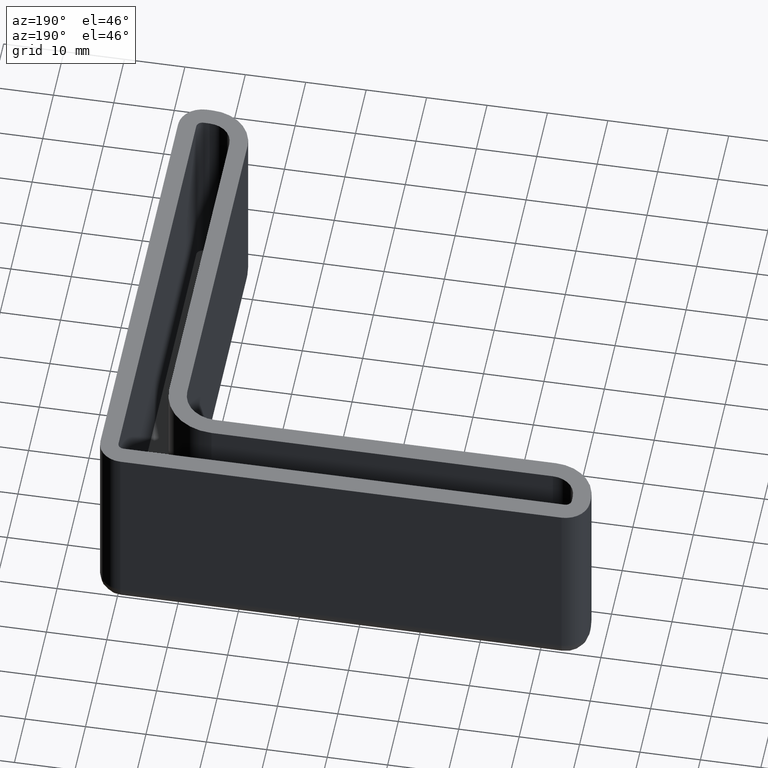
[diagram: clean part render]
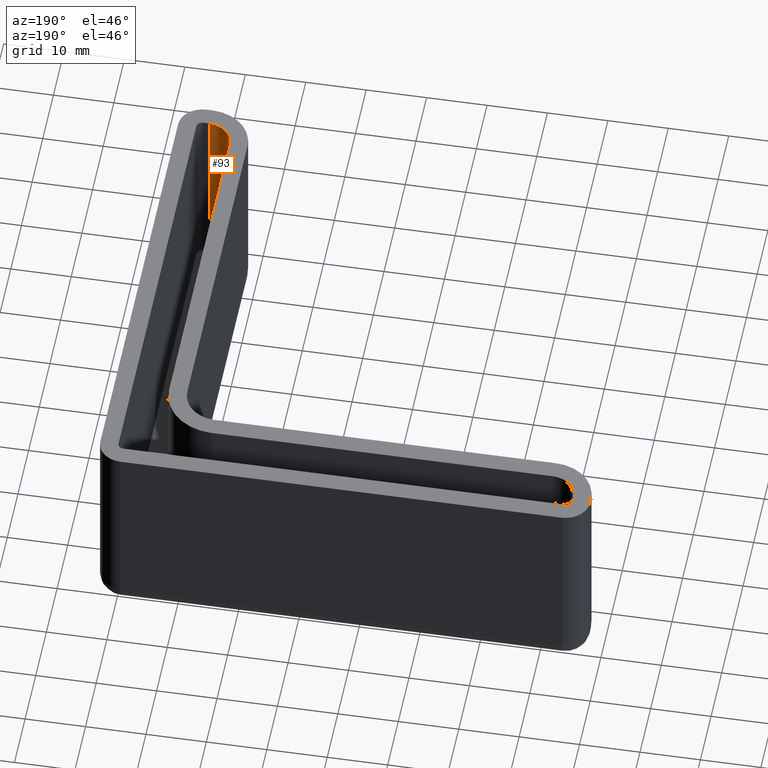
[diagram: same view with one face highlighted and labeled with its STEP entity id]
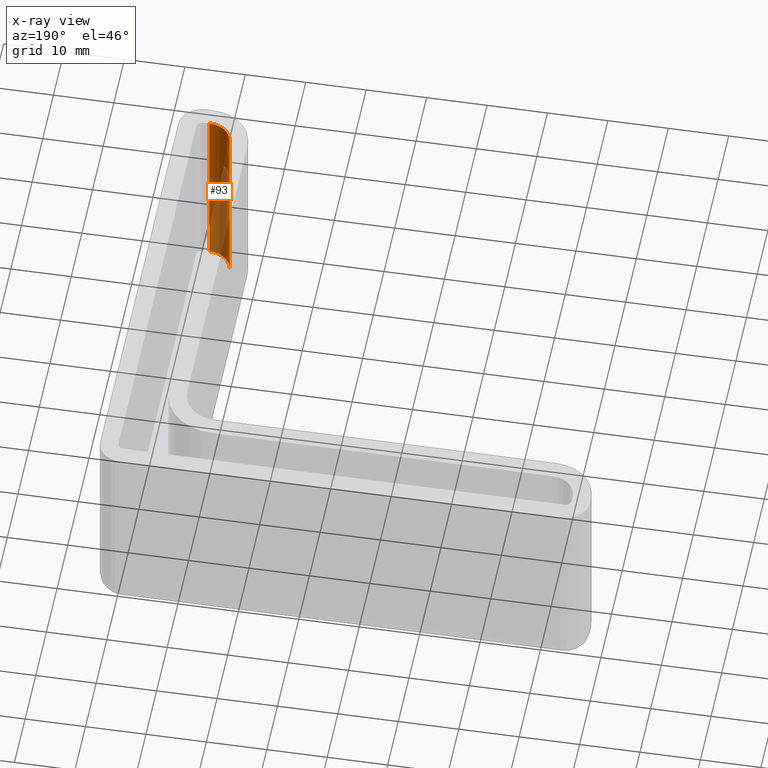
[diagram: x-ray of the same camera — body ghosted, the highlighted face saturated]
A machine part, auxiliary view. The second image highlights one B-rep face of the part: STEP entity #93.
The next image is the same camera in x-ray: the body ghosted, the highlighted face saturated — about 53% of this face is hidden behind the body in this view.
In plain terms, the highlighted cylindrical surface (edge-blend (fillet) strip) has radius 4 mm, axis along (-0, 0, -1).
Its self-contained STEP definition (entity closure, byte-faithful):
#93 = ADVANCED_FACE( '', ( #152 ), #153, .F. );
#152 = FACE_OUTER_BOUND( '', #246, .T. );
#153 = CYLINDRICAL_SURFACE( '', #247, 4.00000000000000 );
#246 = EDGE_LOOP( '', ( #469, #470, #471, #472 ) );
#247 = AXIS2_PLACEMENT_3D( '', #473, #474, #475 );
#469 = ORIENTED_EDGE( '', *, *, #686, .F. );
#470 = ORIENTED_EDGE( '', *, *, #680, .T. );
#471 = ORIENTED_EDGE( '', *, *, #677, .T. );
#472 = ORIENTED_EDGE( '', *, *, #685, .T. );
#473 = CARTESIAN_POINT( '', ( -2.00000000000000, -71.0000000000000, -30.0000000000000 ) );
#474 = DIRECTION( '', ( -3.58678896750442E-017, 8.65927457071936E-017, -1.00000000000000 ) );
#475 = DIRECTION( '', ( -0.707106781186547, -0.707106781186548, -3.58678896750443E-017 ) );
#677 = EDGE_CURVE( '', #818, #816, #819, .T. );
#680 = EDGE_CURVE( '', #822, #818, #823, .T. );
#685 = EDGE_CURVE( '', #816, #829, #831, .T. );
#686 = EDGE_CURVE( '', #822, #829, #832, .T. );
#816 = VERTEX_POINT( '', #999 );
#818 = VERTEX_POINT( '', #1002 );
#819 = CIRCLE( '', #1003, 4.00000000000000 );
#822 = VERTEX_POINT( '', #1008 );
#823 = LINE( '', #1009, #1010 );
#829 = VERTEX_POINT( '', #1019 );
#831 = LINE( '', #1022, #1023 );
#832 = CIRCLE( '', #1024, 4.00000000000000 );
#999 = CARTESIAN_POINT( '', ( -2.00000000000000, -75.0000000000000, -6.66764141945390E-015 ) );
#1002 = CARTESIAN_POINT( '', ( -5.99999999999999, -71.0000000000000, -6.66764141945390E-015 ) );
#1003 = AXIS2_PLACEMENT_3D( '', #1201, #1202, #1203 );
#1008 = CARTESIAN_POINT( '', ( -5.99999999999999, -71.0000000000000, -30.0000000000000 ) );
#1009 = CARTESIAN_POINT( '', ( -5.99999999999999, -71.0000000000000, -30.0000000000000 ) );
#1010 = VECTOR( '', #1206, 1000.00000000000 );
#1019 = CARTESIAN_POINT( '', ( -2.00000000000000, -75.0000000000000, -30.0000000000000 ) );
#1022 = CARTESIAN_POINT( '', ( -2.00000000000000, -75.0000000000000, -30.0000000000000 ) );
#1023 = VECTOR( '', #1211, 1000.00000000000 );
#1024 = AXIS2_PLACEMENT_3D( '', #1212, #1213, #1214 );
#1201 = CARTESIAN_POINT( '', ( -1.99999999999999, -71.0000000000000, -6.32127043662513E-015 ) );
#1202 = DIRECTION( '', ( 3.58678896750442E-017, -8.65927457071936E-017, 1.00000000000000 ) );
#1203 = DIRECTION( '', ( -0.707106781186547, -0.707106781186548, -3.58678896750443E-017 ) );
#1206 = DIRECTION( '', ( 3.58678896750442E-017, -8.65927457071936E-017, 1.00000000000000 ) );
#1211 = DIRECTION( '', ( -3.58678896750442E-017, 8.65927457071936E-017, -1.00000000000000 ) );
#1212 = CARTESIAN_POINT( '', ( -2.00000000000000, -71.0000000000000, -30.0000000000000 ) );
#1213 = DIRECTION( '', ( 3.58678896750442E-017, -8.65927457071936E-017, 1.00000000000000 ) );
#1214 = DIRECTION( '', ( -0.707106781186547, -0.707106781186548, -3.58678896750443E-017 ) );